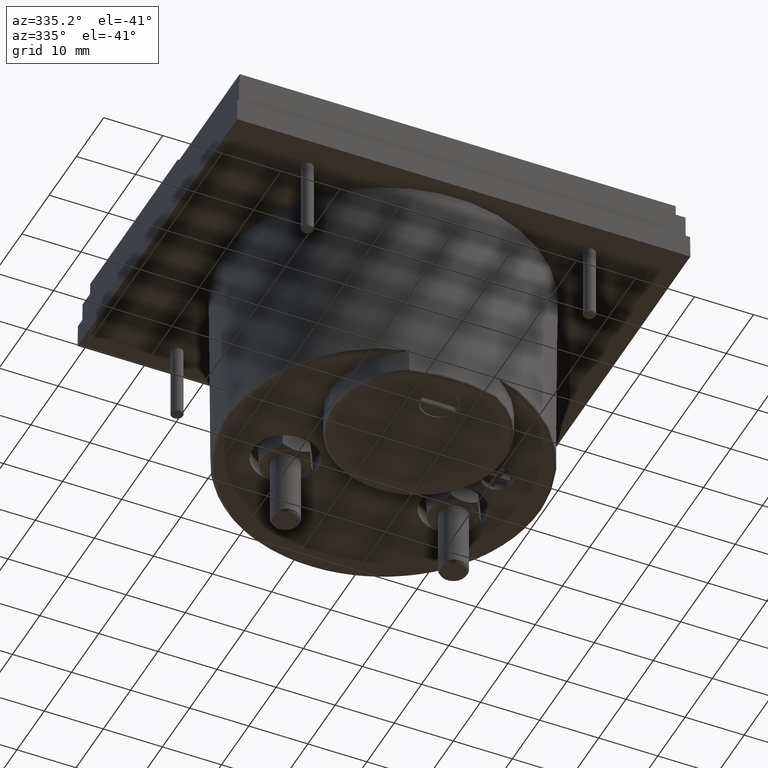
[diagram: clean part render]
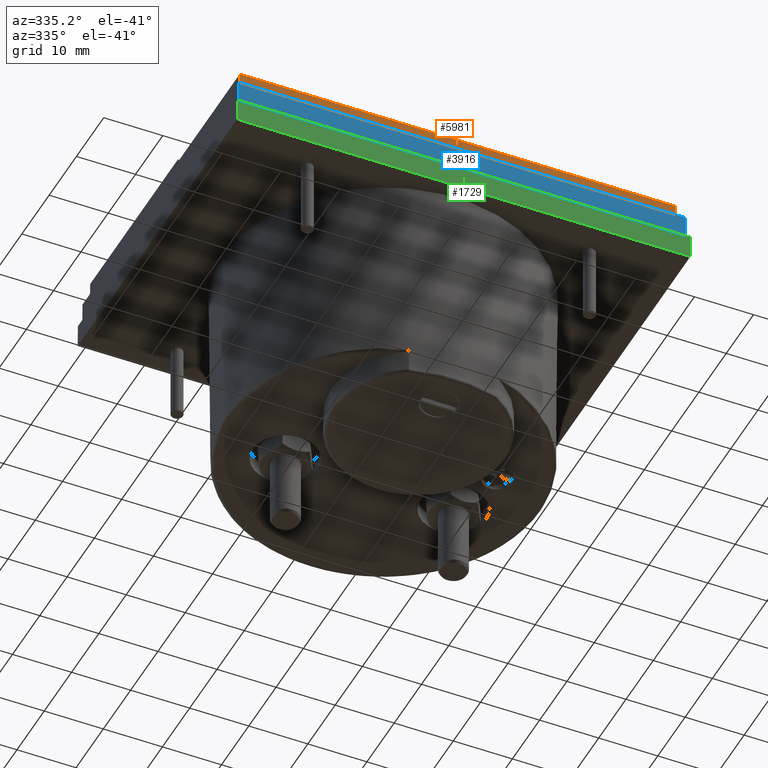
[diagram: same view with three faces highlighted in distinct colors, each labeled with its STEP entity id]
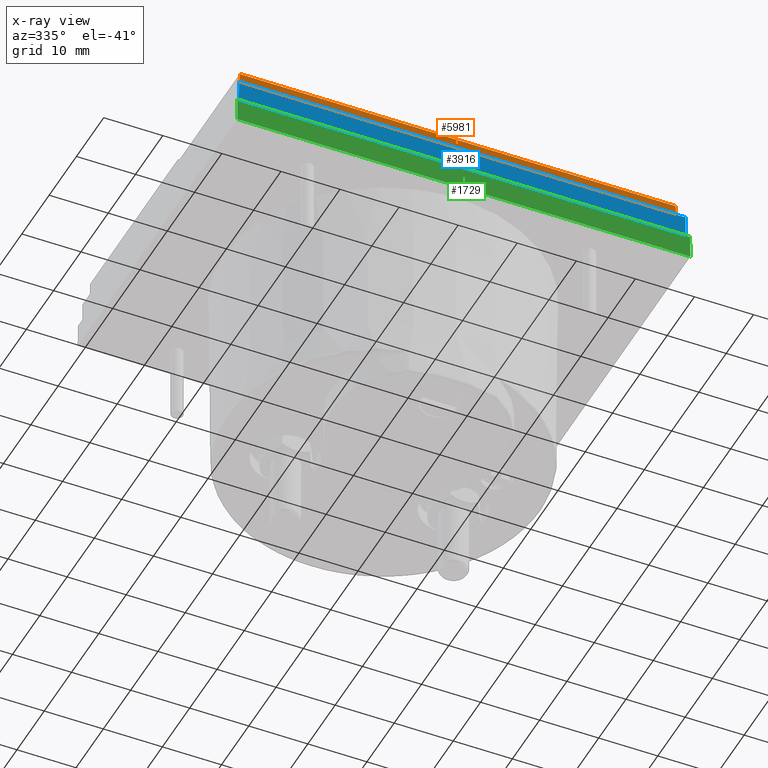
[diagram: x-ray of the same camera — body ghosted, the three highlighted faces saturated]
A machine part, auxiliary view with three faces highlighted in distinct colors.
The next image is the same camera in x-ray (body ghosted, the three faces saturated) — at least one of them is partly hidden behind the body in this view.
Their STEP definitions:

[orange] entity #5981 — the highlighted planar face has unit normal (0, -1, 0.0087).
#1080 = VERTEX_POINT ( 'NONE', #2852 ) ;
#1672 = CARTESIAN_POINT ( 'NONE',  ( 1.509842519685039575, -0.2618110236220452802, -0.2732283464566921394 ) ) ;
#1764 = ORIENTED_EDGE ( 'NONE', *, *, #3797, .T. ) ;
#1907 = VECTOR ( 'NONE', #4855, 39.37007874015748143 ) ;
#1959 = DIRECTION ( 'NONE',  ( 1.000000000000000000, -0.000000000000000000, 0.000000000000000000 ) ) ;
#1967 = CARTESIAN_POINT ( 'NONE',  ( 1.452741772456940694, -0.2578598826931582932, 0.1795275590551188849 ) ) ;
#2123 = EDGE_LOOP ( 'NONE', ( #3889, #4241, #1764, #4738 ) ) ;
#2712 = CARTESIAN_POINT ( 'NONE',  ( 1.453879013889515903, -0.2589971241257337242, 0.04921259842519760952 ) ) ;
#2741 = VERTEX_POINT ( 'NONE', #4967 ) ;
#2852 = CARTESIAN_POINT ( 'NONE',  ( -1.452741772456940472, -0.2578598826931583488, 0.1795275590551188849 ) ) ;
#2856 = VERTEX_POINT ( 'NONE', #1967 ) ;
#3007 = CARTESIAN_POINT ( 'NONE',  ( -1.490157480314960647, -0.2589971241257338908, 0.04921259842519685318 ) ) ;
#3229 = DIRECTION ( 'NONE',  ( -1.000000000000000000, -4.800598825743087264E-17, 4.189419126873180871E-19 ) ) ;
#3371 = VECTOR ( 'NONE', #3656, 39.37007874015747433 ) ;
#3441 = CARTESIAN_POINT ( 'NONE',  ( -1.452741772456940694, -0.2578598826931585708, 0.1795275590551188849 ) ) ;
#3510 = DIRECTION ( 'NONE',  ( 4.800781624796942407E-17, -0.9999619230641713097, 0.008726535498373936411 ) ) ;
#3656 = DIRECTION ( 'NONE',  ( -0.008726203243941538928, 0.008726203243944420304, 0.9999238504775705971 ) ) ;
#3688 = CARTESIAN_POINT ( 'NONE',  ( 1.509842519685039575, -0.2578598826931584043, 0.1795275590551188849 ) ) ;
#3797 = EDGE_CURVE ( 'NONE', #2856, #1080, #4129, .T. ) ;
#3805 = EDGE_CURVE ( 'NONE', #4216, #2856, #5402, .T. ) ;
#3885 = LINE ( 'NONE', #3007, #4142 ) ;
#3889 = ORIENTED_EDGE ( 'NONE', *, *, #4300, .T. ) ;
#3987 = EDGE_CURVE ( 'NONE', #1080, #2741, #4789, .T. ) ;
#4129 = LINE ( 'NONE', #3688, #5969 ) ;
#4142 = VECTOR ( 'NONE', #1959, 39.37007874015748143 ) ;
#4216 = VERTEX_POINT ( 'NONE', #5568 ) ;
#4241 = ORIENTED_EDGE ( 'NONE', *, *, #3805, .T. ) ;
#4300 = EDGE_CURVE ( 'NONE', #2741, #4216, #3885, .T. ) ;
#4738 = ORIENTED_EDGE ( 'NONE', *, *, #3987, .T. ) ;
#4789 = LINE ( 'NONE', #3441, #1907 ) ;
#4855 = DIRECTION ( 'NONE',  ( -0.008726203243943632740, -0.008726203243944418569, -0.9999238504775703751 ) ) ;
#4967 = CARTESIAN_POINT ( 'NONE',  ( -1.453879013889515459, -0.2589971241257338908, 0.04921259842519704747 ) ) ;
#5245 = DIRECTION ( 'NONE',  ( 0.000000000000000000, -0.008726535498373934677, -0.9999619230641711987 ) ) ;
#5308 = PLANE ( 'NONE',  #5608 ) ;
#5402 = LINE ( 'NONE', #2712, #3371 ) ;
#5568 = CARTESIAN_POINT ( 'NONE',  ( 1.453879013889515459, -0.2589971241257336132, 0.04921259842519742217 ) ) ;
#5608 = AXIS2_PLACEMENT_3D ( 'NONE', #1672, #3510, #5245 ) ;
#5703 = FACE_OUTER_BOUND ( 'NONE', #2123, .T. ) ;
#5969 = VECTOR ( 'NONE', #3229, 39.37007874015748143 ) ;
#5981 = ADVANCED_FACE ( 'NONE', ( #5703 ), #5308, .T. ) ;

[blue] entity #3916 — the highlighted planar face has unit normal (0, -1, 0.0087).
#237 = DIRECTION ( 'NONE',  ( -1.000000000000000000, -0.000000000000000000, -0.000000000000000000 ) ) ;
#274 = AXIS2_PLACEMENT_3D ( 'NONE', #4247, #5542, #3383 ) ;
#366 = ORIENTED_EDGE ( 'NONE', *, *, #4489, .T. ) ;
#533 = DIRECTION ( 'NONE',  ( -0.008726203243952150232, -0.008726203243944284996, -0.9999238504775703751 ) ) ;
#787 = EDGE_LOOP ( 'NONE', ( #2925, #3715, #3283, #366 ) ) ;
#814 = EDGE_CURVE ( 'NONE', #5941, #4242, #3448, .T. ) ;
#985 = FACE_OUTER_BOUND ( 'NONE', #787, .T. ) ;
#1491 = LINE ( 'NONE', #2259, #3186 ) ;
#1539 = VECTOR ( 'NONE', #5639, 39.37007874015748854 ) ;
#1552 = VERTEX_POINT ( 'NONE', #2086 ) ;
#2086 = CARTESIAN_POINT ( 'NONE',  ( -1.487343580818646593, -0.3239577540469937289, 0.04921259842519724870 ) ) ;
#2259 = CARTESIAN_POINT ( 'NONE',  ( -1.487343580818645483, -0.3239577540469935624, 0.04921259842519760952 ) ) ;
#2310 = EDGE_CURVE ( 'NONE', #3718, #1552, #4385, .T. ) ;
#2498 = DIRECTION ( 'NONE',  ( 1.000000000000000000, -0.000000000000000000, 0.000000000000000000 ) ) ;
#2668 = VECTOR ( 'NONE', #237, 39.37007874015748143 ) ;
#2925 = ORIENTED_EDGE ( 'NONE', *, *, #814, .T. ) ;
#3139 = CARTESIAN_POINT ( 'NONE',  ( 1.487343580818649480, -0.3239577540469937289, 0.04921259842519704053 ) ) ;
#3186 = VECTOR ( 'NONE', #533, 39.37007874015748143 ) ;
#3283 = ORIENTED_EDGE ( 'NONE', *, *, #2310, .T. ) ;
#3347 = PLANE ( 'NONE',  #274 ) ;
#3383 = DIRECTION ( 'NONE',  ( 0.000000000000000000, -0.008726535498373934677, -0.9999619230641711987 ) ) ;
#3448 = LINE ( 'NONE', #4796, #5654 ) ;
#3478 = CARTESIAN_POINT ( 'NONE',  ( -1.488783170426651203, -0.3253973436549964515, -0.1157480314960627754 ) ) ;
#3715 = ORIENTED_EDGE ( 'NONE', *, *, #5874, .T. ) ;
#3718 = VERTEX_POINT ( 'NONE', #3139 ) ;
#3800 = CARTESIAN_POINT ( 'NONE',  ( 1.488783170426653424, -0.3253973436549966736, -0.1157480314960622064 ) ) ;
#3916 = ADVANCED_FACE ( 'NONE', ( #985 ), #3347, .T. ) ;
#4242 = VERTEX_POINT ( 'NONE', #5116 ) ;
#4247 = CARTESIAN_POINT ( 'NONE',  ( 1.509842519685039575, -0.3267716535433051184, -0.2732283464566921394 ) ) ;
#4248 = LINE ( 'NONE', #3800, #1539 ) ;
#4385 = LINE ( 'NONE', #4747, #2668 ) ;
#4489 = EDGE_CURVE ( 'NONE', #1552, #5941, #1491, .T. ) ;
#4747 = CARTESIAN_POINT ( 'NONE',  ( 1.509842519685039575, -0.3239577540469935624, 0.04921259842519760952 ) ) ;
#4796 = CARTESIAN_POINT ( 'NONE',  ( 1.490157480314960647, -0.3253973436549964515, -0.1157480314960629975 ) ) ;
#5116 = CARTESIAN_POINT ( 'NONE',  ( 1.488783170426652980, -0.3253973436549965070, -0.1157480314960624146 ) ) ;
#5542 = DIRECTION ( 'NONE',  ( 0.000000000000000000, -0.9999619230641713097, 0.008726535498373936411 ) ) ;
#5639 = DIRECTION ( 'NONE',  ( -0.008726203243948838645, 0.008726203243944284996, 0.9999238504775703751 ) ) ;
#5654 = VECTOR ( 'NONE', #2498, 39.37007874015748143 ) ;
#5874 = EDGE_CURVE ( 'NONE', #4242, #3718, #4248, .T. ) ;
#5941 = VERTEX_POINT ( 'NONE', #3478 ) ;

[green] entity #1729 — the highlighted planar face has unit normal (0, -1, 0.0087).
#10 = LINE ( 'NONE', #4275, #5505 ) ;
#151 = AXIS2_PLACEMENT_3D ( 'NONE', #3333, #3812, #1088 ) ;
#420 = LINE ( 'NONE', #1813, #1433 ) ;
#458 = LINE ( 'NONE', #1961, #4250 ) ;
#1053 = ORIENTED_EDGE ( 'NONE', *, *, #5306, .T. ) ;
#1088 = DIRECTION ( 'NONE',  ( 0.000000000000000000, -0.008726535498373934677, -0.9999619230641711987 ) ) ;
#1372 = ORIENTED_EDGE ( 'NONE', *, *, #5805, .F. ) ;
#1400 = ORIENTED_EDGE ( 'NONE', *, *, #4495, .F. ) ;
#1433 = VECTOR ( 'NONE', #5959, 39.37007874015748143 ) ;
#1463 = VERTEX_POINT ( 'NONE', #5354 ) ;
#1517 = DIRECTION ( 'NONE',  ( 0.008726203243943650087, 0.008726203243942782725, 0.9999238504775703751 ) ) ;
#1541 = CARTESIAN_POINT ( 'NONE',  ( 1.508468209796731907, -0.3450823830250755453, -0.1157480314960628032 ) ) ;
#1729 = ADVANCED_FACE ( 'NONE', ( #4773 ), #1926, .T. ) ;
#1813 = CARTESIAN_POINT ( 'NONE',  ( 1.456692913385826849, -0.3464566929133838791, -0.2732283464566925280 ) ) ;
#1897 = CARTESIAN_POINT ( 'NONE',  ( 1.508468209796731019, -0.3450823830250756563, -0.1157480314960622064 ) ) ;
#1926 = PLANE ( 'NONE',  #151 ) ;
#1956 = LINE ( 'NONE', #1897, #2575 ) ;
#1961 = CARTESIAN_POINT ( 'NONE',  ( 1.509842519685039575, -0.3450823830250754343, -0.1157480314960622064 ) ) ;
#2103 = EDGE_CURVE ( 'NONE', #4314, #3833, #1956, .T. ) ;
#2575 = VECTOR ( 'NONE', #2875, 39.37007874015748143 ) ;
#2754 = CARTESIAN_POINT ( 'NONE',  ( -1.509842519685039575, -0.3464566929133838791, -0.2732283464566924169 ) ) ;
#2875 = DIRECTION ( 'NONE',  ( 0.008726203243943650087, -0.008726203243942782725, -0.9999238504775703751 ) ) ;
#3167 = EDGE_LOOP ( 'NONE', ( #1372, #1400, #4582, #1053 ) ) ;
#3333 = CARTESIAN_POINT ( 'NONE',  ( 1.509842519685039575, -0.3464566929133838791, -0.2732283464566921394 ) ) ;
#3711 = CARTESIAN_POINT ( 'NONE',  ( 1.509842519685039575, -0.3464566929133838791, -0.2732283464566922504 ) ) ;
#3812 = DIRECTION ( 'NONE',  ( 0.000000000000000000, -0.9999619230641713097, 0.008726535498373936411 ) ) ;
#3833 = VERTEX_POINT ( 'NONE', #3711 ) ;
#4220 = VERTEX_POINT ( 'NONE', #2754 ) ;
#4250 = VECTOR ( 'NONE', #5142, 39.37007874015748143 ) ;
#4275 = CARTESIAN_POINT ( 'NONE',  ( -1.509842519685039575, -0.3464566929133838791, -0.2732283464566921394 ) ) ;
#4314 = VERTEX_POINT ( 'NONE', #1541 ) ;
#4495 = EDGE_CURVE ( 'NONE', #3833, #4220, #420, .T. ) ;
#4582 = ORIENTED_EDGE ( 'NONE', *, *, #2103, .F. ) ;
#4773 = FACE_OUTER_BOUND ( 'NONE', #3167, .T. ) ;
#5142 = DIRECTION ( 'NONE',  ( -1.000000000000000000, -0.000000000000000000, -0.000000000000000000 ) ) ;
#5306 = EDGE_CURVE ( 'NONE', #4314, #1463, #458, .T. ) ;
#5354 = CARTESIAN_POINT ( 'NONE',  ( -1.508468209796729020, -0.3450823830250755453, -0.1157480314960625950 ) ) ;
#5505 = VECTOR ( 'NONE', #1517, 39.37007874015748143 ) ;
#5805 = EDGE_CURVE ( 'NONE', #4220, #1463, #10, .T. ) ;
#5959 = DIRECTION ( 'NONE',  ( -1.000000000000000000, 0.000000000000000000, -0.000000000000000000 ) ) ;